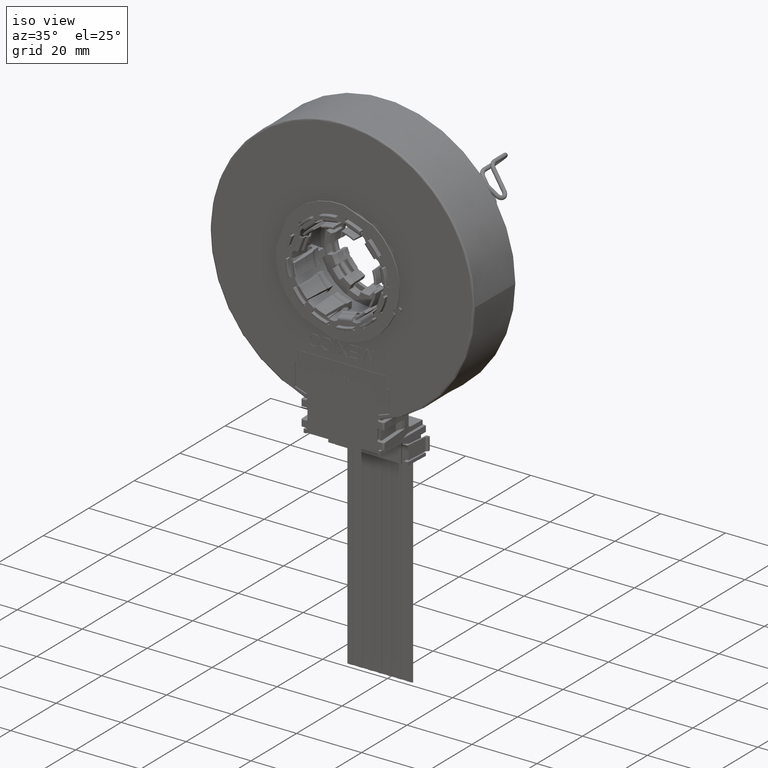
[diagram: clean part render]
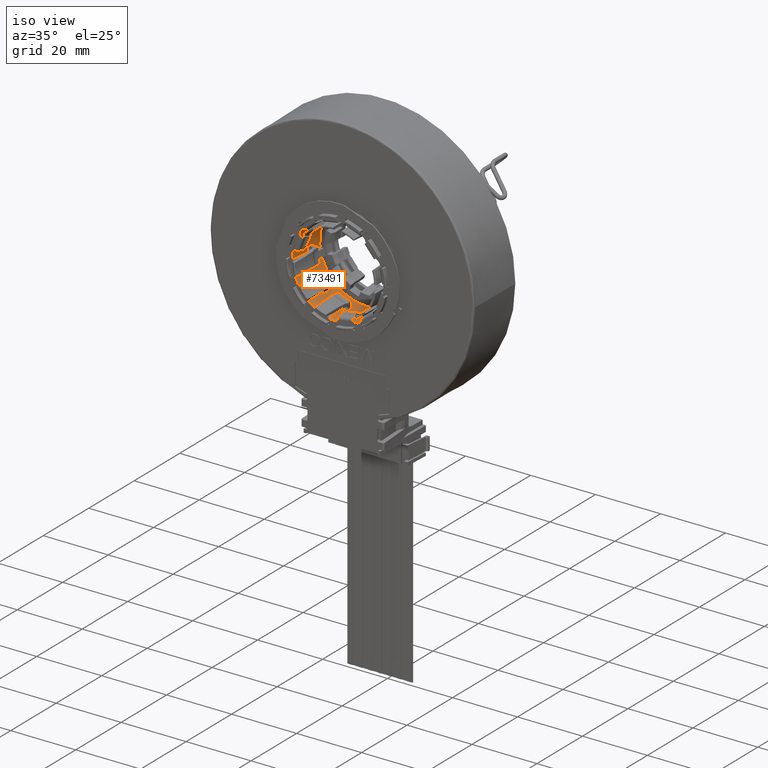
[diagram: same view with one face highlighted and labeled with its STEP entity id]
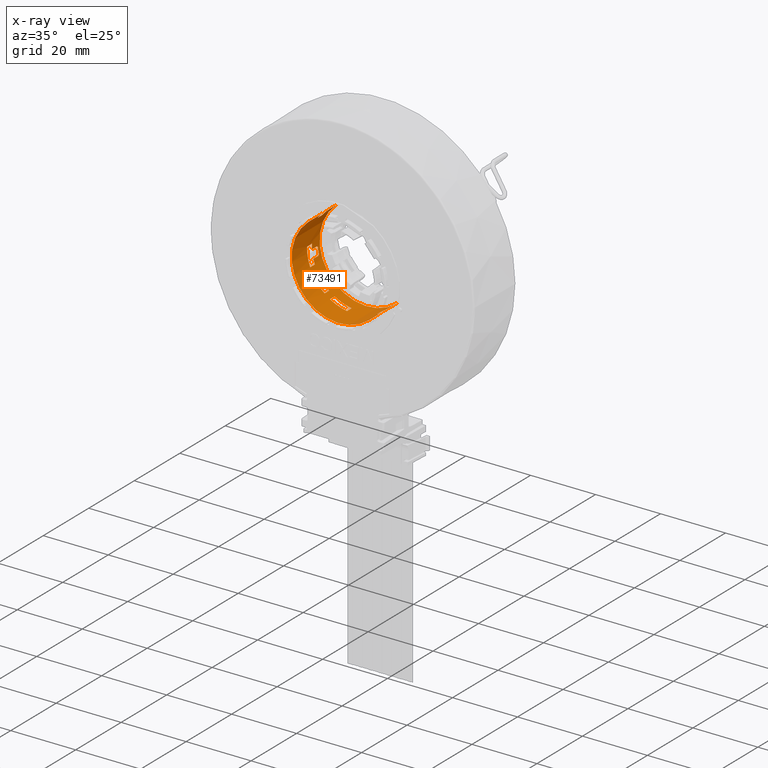
[diagram: x-ray of the same camera — body ghosted, the highlighted face saturated]
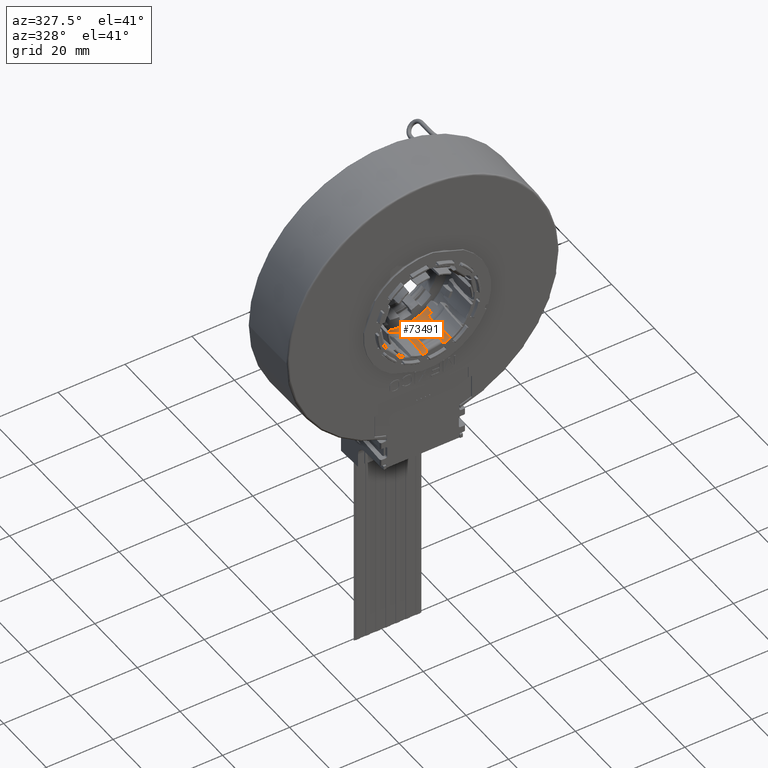
[diagram: same view with one face highlighted and labeled with its STEP entity id]
A machine part, iso view. The second image highlights one B-rep face of the part: STEP entity #73491.
The next image is the same camera in x-ray: the body ghosted, the highlighted face saturated — about 0% of this face is hidden behind the body in this view.
A second angle (auxiliary view) of the same face is appended — the face is thin or edge-on in the first view.
In plain terms, the highlighted cylindrical surface (partial cylindrical patch) has radius 14.5542 mm, axis along (0, -1, 0).
Its self-contained STEP definition (entity closure, byte-faithful):
#58104=CARTESIAN_POINT('',(0.E0,3.93E-1,0.E0));
#58105=DIRECTION('',(0.E0,-1.E0,0.E0));
#58106=DIRECTION('',(6.018186329887E-1,0.E0,-7.986327898274E-1));
#58107=AXIS2_PLACEMENT_3D('',#58104,#58105,#58106);
#58145=CARTESIAN_POINT('',(3.286592980291E-1,3.73E-1,-4.693741213776E-1));
#58146=CARTESIAN_POINT('',(3.286592980291E-1,3.737475671894E-1,
-4.693741213776E-1));
#58147=CARTESIAN_POINT('',(3.287278741460E-1,3.752428362838E-1,
-4.693261156014E-1));
#58148=CARTESIAN_POINT('',(3.290372287557E-1,3.774635479051E-1,
-4.691093493009E-1));
#58149=CARTESIAN_POINT('',(3.295449451814E-1,3.796170363161E-1,
-4.687529314399E-1));
#58150=CARTESIAN_POINT('',(3.302508888358E-1,3.817008254184E-1,
-4.682559820079E-1));
#58151=CARTESIAN_POINT('',(3.311364677527E-1,3.836619048286E-1,
-4.676303175865E-1));
#58152=CARTESIAN_POINT('',(3.321993946177E-1,3.854990018664E-1,
-4.668760195500E-1));
#58153=CARTESIAN_POINT('',(3.334181527261E-1,3.871731799112E-1,
-4.660066236810E-1));
#58154=CARTESIAN_POINT('',(3.347787301074E-1,3.886698311209E-1,
-4.650303593882E-1));
#58155=CARTESIAN_POINT('',(3.362680176099E-1,3.899724819446E-1,
-4.639547650886E-1));
#58156=CARTESIAN_POINT('',(3.378539146503E-1,3.910561258682E-1,
-4.628013633606E-1));
#58157=CARTESIAN_POINT('',(3.395346447897E-1,3.919188658127E-1,
-4.615698509931E-1));
#58158=CARTESIAN_POINT('',(3.412669036440E-1,3.925387797399E-1,
-4.602906681175E-1));
#58159=CARTESIAN_POINT('',(3.430484219881E-1,3.929163128499E-1,
-4.589645430434E-1));
#58160=CARTESIAN_POINT('',(3.442447641884E-1,3.93E-1,-4.580667000683E-1));
#58161=CARTESIAN_POINT('',(3.448420767025E-1,3.93E-1,-4.576165885711E-1));
#58547=DIRECTION('',(0.E0,1.E0,0.E0));
#58548=VECTOR('',#58547,8.04E-2);
#58549=CARTESIAN_POINT('',(2.778218119101E-1,2.126E-1,-5.011427349837E-1));
#58550=LINE('',#58549,#58548);
#58551=CARTESIAN_POINT('',(0.E0,2.126E-1,0.E0));
#58552=DIRECTION('',(0.E0,1.E0,0.E0));
#58553=DIRECTION('',(6.427876096865E-1,0.E0,-7.660444431190E-1));
#58554=AXIS2_PLACEMENT_3D('',#58551,#58552,#58553);
#58556=DIRECTION('',(4.924643984417E-12,-1.E0,4.132635107732E-12));
#58557=VECTOR('',#58556,2.676E-1);
#58558=CARTESIAN_POINT('',(3.683173003504E-1,2.126E-1,-4.389434659072E-1));
#58559=LINE('',#58558,#58557);
#58560=DIRECTION('',(-4.925888629064E-12,-1.E0,-4.133049989281E-12));
#58561=VECTOR('',#58560,2.676E-1);
#58562=CARTESIAN_POINT('',(-3.683173003504E-1,2.126E-1,4.389434659072E-1));
#58563=LINE('',#58562,#58561);
#58564=CARTESIAN_POINT('',(0.E0,2.126E-1,0.E0));
#58565=DIRECTION('',(0.E0,1.E0,0.E0));
#58566=DIRECTION('',(-7.771134370391E-1,0.E0,6.293605532390E-1));
#58567=AXIS2_PLACEMENT_3D('',#58564,#58565,#58566);
#58569=DIRECTION('',(0.E0,-1.E0,0.E0));
#58570=VECTOR('',#58569,8.04E-2);
#58571=CARTESIAN_POINT('',(-4.452859994234E-1,2.93E-1,3.606235970060E-1));
#58572=LINE('',#58571,#58570);
#58573=DIRECTION('',(-3.768275229567E-14,-1.E0,-3.160488902218E-14));
#58574=VECTOR('',#58573,1.37E-1);
#58575=CARTESIAN_POINT('',(-3.683173003504E-1,4.3E-1,4.389434659072E-1));
#58576=LINE('',#58575,#58574);
#58577=DIRECTION('',(1.410283301551E-13,-1.E0,1.170235080010E-13));
#58578=VECTOR('',#58577,3.7E-2);
#58579=CARTESIAN_POINT('',(3.683173003504E-1,4.3E-1,-4.389434659072E-1));
#58580=LINE('',#58579,#58578);
#58581=DIRECTION('',(0.E0,1.E0,0.E0));
#58582=VECTOR('',#58581,8.04E-2);
#58583=CARTESIAN_POINT('',(-2.950914334628E-1,2.126E-1,-4.911721143315E-1));
#58584=LINE('',#58583,#58582);
#58585=CARTESIAN_POINT('',(0.E0,2.126E-1,0.E0));
#58586=DIRECTION('',(0.E0,1.E0,0.E0));
#58587=DIRECTION('',(-1.564855087253E-1,0.E0,-9.876802547176E-1));
#58588=AXIS2_PLACEMENT_3D('',#58585,#58586,#58587);
#58590=DIRECTION('',(0.E0,-1.E0,0.E0));
#58591=VECTOR('',#58590,8.04E-2);
#58592=CARTESIAN_POINT('',(-8.966619649959E-2,2.93E-1,-5.659407859532E-1));
#58593=LINE('',#58592,#58591);
#58594=DIRECTION('',(0.E0,1.E0,0.E0));
#58595=VECTOR('',#58594,8.04E-2);
#58596=CARTESIAN_POINT('',(-5.011427349837E-1,2.126E-1,-2.778218119101E-1));
#58597=LINE('',#58596,#58595);
#58598=CARTESIAN_POINT('',(0.E0,2.126E-1,0.E0));
#58599=DIRECTION('',(0.E0,1.E0,0.E0));
#58600=DIRECTION('',(-6.293605532390E-1,0.E0,-7.771134370391E-1));
#58601=AXIS2_PLACEMENT_3D('',#58598,#58599,#58600);
#58603=DIRECTION('',(0.E0,-1.E0,0.E0));
#58604=VECTOR('',#58603,8.04E-2);
#58605=CARTESIAN_POINT('',(-3.606235970060E-1,2.93E-1,-4.452859994234E-1));
#58606=LINE('',#58605,#58604);
#58607=DIRECTION('',(0.E0,1.E0,0.E0));
#58608=VECTOR('',#58607,8.04E-2);
#58609=CARTESIAN_POINT('',(-5.729132453730E-1,2.126E-1,9.970620652248E-3));
#58610=LINE('',#58609,#58608);
#58611=CARTESIAN_POINT('',(0.E0,2.126E-1,0.E0));
#58612=DIRECTION('',(0.E0,1.E0,0.E0));
#58613=DIRECTION('',(-9.335989457644E-1,0.E0,-3.583197014786E-1));
#58614=AXIS2_PLACEMENT_3D('',#58611,#58612,#58613);
#58616=DIRECTION('',(0.E0,-1.E0,0.E0));
#58617=VECTOR('',#58616,8.04E-2);
#58618=CARTESIAN_POINT('',(-5.349521959230E-1,2.93E-1,-2.053171889472E-1));
#58619=LINE('',#58618,#58617);
#58629=DIRECTION('',(0.E0,-1.E0,0.E0));
#58630=VECTOR('',#58629,8.E-2);
#58631=CARTESIAN_POINT('',(3.286592980291E-1,3.73E-1,-4.693741213776E-1));
#58632=LINE('',#58631,#58630);
#58669=CARTESIAN_POINT('',(0.E0,2.93E-1,0.E0));
#58670=DIRECTION('',(0.E0,1.E0,0.E0));
#58671=DIRECTION('',(5.735764363510E-1,0.E0,-8.191520442890E-1));
#58672=AXIS2_PLACEMENT_3D('',#58669,#58670,#58671);
#58684=CARTESIAN_POINT('',(0.E0,-5.5E-2,0.E0));
#58685=DIRECTION('',(0.E0,1.E0,0.E0));
#58686=DIRECTION('',(6.427876096865E-1,0.E0,-7.660444431190E-1));
#58687=AXIS2_PLACEMENT_3D('',#58684,#58685,#58686);
#63110=CARTESIAN_POINT('',(0.E0,4.3E-1,0.E0));
#63111=DIRECTION('',(0.E0,1.E0,0.E0));
#63112=DIRECTION('',(6.427876096865E-1,0.E0,-7.660444431190E-1));
#63113=AXIS2_PLACEMENT_3D('',#63110,#63111,#63112);
#65283=CARTESIAN_POINT('',(0.E0,2.93E-1,0.E0));
#65284=DIRECTION('',(0.E0,1.E0,0.E0));
#65285=DIRECTION('',(-7.771134370391E-1,0.E0,6.293605532390E-1));
#65286=AXIS2_PLACEMENT_3D('',#65283,#65284,#65285);
#65983=CARTESIAN_POINT('',(0.E0,3.93E-1,0.E0));
#65984=DIRECTION('',(0.E0,-1.E0,0.E0));
#65985=DIRECTION('',(-9.925456007802E-1,0.E0,-1.218738297253E-1));
#65986=AXIS2_PLACEMENT_3D('',#65983,#65984,#65985);
#66019=CARTESIAN_POINT('',(-5.708195620066E-1,3.73E-1,-4.994024059441E-2));
#66020=CARTESIAN_POINT('',(-5.708195620066E-1,3.737475671894E-1,
-4.994024059441E-2));
#66021=CARTESIAN_POINT('',(-5.708122758433E-1,3.752428362838E-1,
-5.002363214178E-2));
#66022=CARTESIAN_POINT('',(-5.707792280252E-1,3.774635479051E-1,
-5.039992424280E-2));
#66023=CARTESIAN_POINT('',(-5.707244193161E-1,3.796170363161E-1,
-5.101782849589E-2));
#66024=CARTESIAN_POINT('',(-5.706470203107E-1,3.817008254184E-1,
-5.187766835023E-2));
#66025=CARTESIAN_POINT('',(-5.705479684860E-1,3.836619048286E-1,
-5.295743440005E-2));
#66026=CARTESIAN_POINT('',(-5.704261906569E-1,3.854990018664E-1,
-5.425510508576E-2));
#66027=CARTESIAN_POINT('',(-5.702826508026E-1,3.871731799112E-1,
-5.574527850321E-2));
#66028=CARTESIAN_POINT('',(-5.701174698149E-1,3.886698311209E-1,
-5.741170522562E-2));
#66029=CARTESIAN_POINT('',(-5.699306215785E-1,3.899724819446E-1,
-5.923926318612E-2));
#66030=CARTESIAN_POINT('',(-5.697246949015E-1,3.910561258682E-1,
-6.118939117486E-2));
#66031=CARTESIAN_POINT('',(-5.694985389759E-1,3.919188658127E-1,
-6.326070235623E-2));
#66032=CARTESIAN_POINT('',(-5.692568635367E-1,3.925387797399E-1,
-6.540047396784E-2));
#66033=CARTESIAN_POINT('',(-5.689991647059E-1,3.929163128499E-1,
-6.760637664821E-2));
#66034=CARTESIAN_POINT('',(-5.688197809811E-1,3.93E-1,-6.909136087284E-2));
#66035=CARTESIAN_POINT('',(-5.687286292470E-1,3.93E-1,-6.983370443262E-2));
#66046=DIRECTION('',(0.E0,-1.E0,0.E0));
#66047=VECTOR('',#66046,8.E-2);
#66048=CARTESIAN_POINT('',(-5.708195620066E-1,3.73E-1,-4.994024059441E-2));
#66049=LINE('',#66048,#66047);
#66086=CARTESIAN_POINT('',(0.E0,2.93E-1,0.E0));
#66087=DIRECTION('',(0.E0,1.E0,0.E0));
#66088=DIRECTION('',(-9.961946980917E-1,0.E0,-8.715574274766E-2));
#66089=AXIS2_PLACEMENT_3D('',#66086,#66087,#66088);
#66095=CARTESIAN_POINT('',(-5.583146297321E-1,3.93E-1,-1.288944305510E-1));
#66096=CARTESIAN_POINT('',(-5.581463878933E-1,3.93E-1,-1.296231810454E-1));
#66097=CARTESIAN_POINT('',(-5.578070589385E-1,3.929163128499E-1,
-1.310799626105E-1));
#66098=CARTESIAN_POINT('',(-5.572947534772E-1,3.925387797399E-1,
-1.332409712725E-1));
#66099=CARTESIAN_POINT('',(-5.567900091107E-1,3.919188658127E-1,
-1.353343567344E-1));
#66100=CARTESIAN_POINT('',(-5.562940960181E-1,3.910561258682E-1,
-1.373581024490E-1));
#66101=CARTESIAN_POINT('',(-5.558206207427E-1,3.899724819446E-1,
-1.392610544012E-1));
#66102=CARTESIAN_POINT('',(-5.553711390160E-1,3.886698311209E-1,
-1.410423029913E-1));
#66103=CARTESIAN_POINT('',(-5.549564068648E-1,3.871731799112E-1,
-1.426647271105E-1));
#66104=CARTESIAN_POINT('',(-5.545816208809E-1,3.854990018664E-1,
-1.441141255961E-1));
#66105=CARTESIAN_POINT('',(-5.542522250944E-1,3.836619048286E-1,
-1.453751876343E-1));
#66106=CARTESIAN_POINT('',(-5.539760016240E-1,3.817008254184E-1,
-1.464237135428E-1));
#66107=CARTESIAN_POINT('',(-5.537546503480E-1,3.796170363161E-1,
-1.472581707278E-1));
#66108=CARTESIAN_POINT('',(-5.535948179863E-1,3.774635479051E-1,
-1.478575564774E-1));
#66109=CARTESIAN_POINT('',(-5.534971732987E-1,3.752428362838E-1,
-1.482224584074E-1));
#66110=CARTESIAN_POINT('',(-5.534754984636E-1,3.737475671894E-1,
-1.483033128437E-1));
#66111=CARTESIAN_POINT('',(-5.534754984636E-1,3.73E-1,-1.483033128437E-1));
#66135=DIRECTION('',(0.E0,-1.E0,0.E0));
#66136=VECTOR('',#66135,8.E-2);
#66137=CARTESIAN_POINT('',(-5.534754984636E-1,3.73E-1,-1.483033128437E-1));
#66138=LINE('',#66137,#66136);
#66152=CARTESIAN_POINT('',(0.E0,2.93E-1,0.E0));
#66153=DIRECTION('',(0.E0,1.E0,0.E0));
#66154=DIRECTION('',(-9.335989457644E-1,0.E0,-3.583197014786E-1));
#66155=AXIS2_PLACEMENT_3D('',#66152,#66153,#66154);
#66810=CARTESIAN_POINT('',(0.E0,2.93E-1,0.E0));
#66811=DIRECTION('',(0.E0,1.E0,0.E0));
#66812=DIRECTION('',(-6.293605532390E-1,0.E0,-7.771134370391E-1));
#66813=AXIS2_PLACEMENT_3D('',#66810,#66811,#66812);
#67440=CARTESIAN_POINT('',(0.E0,2.93E-1,0.E0));
#67441=DIRECTION('',(0.E0,1.E0,0.E0));
#67442=DIRECTION('',(-1.564855087253E-1,0.E0,-9.876802547176E-1));
#67443=AXIS2_PLACEMENT_3D('',#67440,#67441,#67442);
#70559=CARTESIAN_POINT('',(3.683173003504E-1,2.126E-1,-4.389434659072E-1));
#70560=CARTESIAN_POINT('',(3.683173003517E-1,-5.5E-2,-4.389434659061E-1));
#70561=VERTEX_POINT('',#70559);
#70562=VERTEX_POINT('',#70560);
#70563=CARTESIAN_POINT('',(-3.683173003504E-1,2.126E-1,4.389434659072E-1));
#70564=CARTESIAN_POINT('',(-3.683173003517E-1,-5.5E-2,4.389434659061E-1));
#70565=VERTEX_POINT('',#70563);
#70566=VERTEX_POINT('',#70564);
#70567=CARTESIAN_POINT('',(3.683173003504E-1,4.3E-1,-4.389434659072E-1));
#70568=CARTESIAN_POINT('',(-3.683173003504E-1,4.3E-1,4.389434659072E-1));
#70569=VERTEX_POINT('',#70567);
#70570=VERTEX_POINT('',#70568);
#70575=CARTESIAN_POINT('',(-3.683173003504E-1,2.93E-1,4.389434659072E-1));
#70576=VERTEX_POINT('',#70575);
#70679=CARTESIAN_POINT('',(2.778218119101E-1,2.93E-1,-5.011427349837E-1));
#70681=VERTEX_POINT('',#70679);
#70686=CARTESIAN_POINT('',(2.778218119101E-1,2.126E-1,-5.011427349837E-1));
#70687=VERTEX_POINT('',#70686);
#70690=CARTESIAN_POINT('',(-8.966619649959E-2,2.93E-1,-5.659407859532E-1));
#70692=VERTEX_POINT('',#70690);
#70697=CARTESIAN_POINT('',(-8.966619649959E-2,2.126E-1,-5.659407859532E-1));
#70698=VERTEX_POINT('',#70697);
#70701=CARTESIAN_POINT('',(-2.950914334628E-1,2.93E-1,-4.911721143315E-1));
#70703=VERTEX_POINT('',#70701);
#70705=CARTESIAN_POINT('',(-3.606235970060E-1,2.93E-1,-4.452859994234E-1));
#70707=VERTEX_POINT('',#70705);
#70715=CARTESIAN_POINT('',(-2.950914334628E-1,2.126E-1,-4.911721143315E-1));
#70716=VERTEX_POINT('',#70715);
#70717=CARTESIAN_POINT('',(-3.606235970060E-1,2.126E-1,-4.452859994234E-1));
#70718=VERTEX_POINT('',#70717);
#70723=CARTESIAN_POINT('',(-5.011427349837E-1,2.93E-1,-2.778218119101E-1));
#70725=VERTEX_POINT('',#70723);
#70727=CARTESIAN_POINT('',(-5.349521959230E-1,2.93E-1,-2.053171889472E-1));
#70729=VERTEX_POINT('',#70727);
#70737=CARTESIAN_POINT('',(-5.011427349837E-1,2.126E-1,-2.778218119101E-1));
#70738=VERTEX_POINT('',#70737);
#70739=CARTESIAN_POINT('',(-5.349521959230E-1,2.126E-1,-2.053171889472E-1));
#70740=VERTEX_POINT('',#70739);
#70745=CARTESIAN_POINT('',(-5.729132453730E-1,2.93E-1,9.970620652248E-3));
#70747=VERTEX_POINT('',#70745);
#70752=CARTESIAN_POINT('',(-5.729132453730E-1,2.126E-1,9.970620652248E-3));
#70753=VERTEX_POINT('',#70752);
#70756=CARTESIAN_POINT('',(-4.452859994234E-1,2.93E-1,3.606235970060E-1));
#70758=VERTEX_POINT('',#70756);
#70763=CARTESIAN_POINT('',(-4.452859994234E-1,2.126E-1,3.606235970060E-1));
#70764=VERTEX_POINT('',#70763);
#71076=CARTESIAN_POINT('',(3.683173003504E-1,3.93E-1,-4.389434659072E-1));
#71077=VERTEX_POINT('',#71076);
#71082=CARTESIAN_POINT('',(3.286592980291E-1,2.93E-1,-4.693741213776E-1));
#71084=VERTEX_POINT('',#71082);
#71087=CARTESIAN_POINT('',(3.448420767025E-1,3.93E-1,-4.576165885711E-1));
#71089=VERTEX_POINT('',#71087);
#71091=CARTESIAN_POINT('',(3.286592980291E-1,3.73E-1,-4.693741213776E-1));
#71093=VERTEX_POINT('',#71091);
#71102=CARTESIAN_POINT('',(-5.708195620066E-1,2.93E-1,-4.994024059441E-2));
#71104=VERTEX_POINT('',#71102);
#71107=CARTESIAN_POINT('',(-5.687286292470E-1,3.93E-1,-6.983370443262E-2));
#71109=VERTEX_POINT('',#71107);
#71111=CARTESIAN_POINT('',(-5.708195620066E-1,3.73E-1,-4.994024059441E-2));
#71113=VERTEX_POINT('',#71111);
#71114=CARTESIAN_POINT('',(-5.583146297321E-1,3.93E-1,-1.288944305510E-1));
#71116=VERTEX_POINT('',#71114);
#71118=CARTESIAN_POINT('',(-5.534754984636E-1,3.73E-1,-1.483033128437E-1));
#71120=VERTEX_POINT('',#71118);
#71122=CARTESIAN_POINT('',(-5.534754984636E-1,2.93E-1,-1.483033128437E-1));
#71123=VERTEX_POINT('',#71122);
#73420=CARTESIAN_POINT('',(0.E0,4.7935E-1,0.E0));
#73421=DIRECTION('',(0.E0,-1.E0,0.E0));
#73422=DIRECTION('',(-6.427876096865E-1,0.E0,7.660444431190E-1));
#73423=AXIS2_PLACEMENT_3D('',#73420,#73421,#73422);
#73424=CYLINDRICAL_SURFACE('',#73423,5.73E-1);
#73425=ORIENTED_EDGE('',*,*,#73126,.F.);
#73426=ORIENTED_EDGE('',*,*,#73145,.F.);
#73428=ORIENTED_EDGE('',*,*,#73427,.T.);
#73430=ORIENTED_EDGE('',*,*,#73429,.T.);
#73431=ORIENTED_EDGE('',*,*,#73265,.F.);
#73432=ORIENTED_EDGE('',*,*,#73415,.F.);
#73433=ORIENTED_EDGE('',*,*,#73027,.T.);
#73435=ORIENTED_EDGE('',*,*,#73434,.T.);
#73436=ORIENTED_EDGE('',*,*,#73023,.F.);
#73438=ORIENTED_EDGE('',*,*,#73437,.F.);
#73440=ORIENTED_EDGE('',*,*,#73439,.F.);
#73442=ORIENTED_EDGE('',*,*,#73441,.T.);
#73443=ORIENTED_EDGE('',*,*,#73015,.F.);
#73445=ORIENTED_EDGE('',*,*,#73444,.F.);
#73446=ORIENTED_EDGE('',*,*,#73011,.T.);
#73447=EDGE_LOOP('',(#73425,#73426,#73428,#73430,#73431,#73432,#73433,#73435,
#73436,#73438,#73440,#73442,#73443,#73445,#73446));
#73448=FACE_OUTER_BOUND('',#73447,.F.);
#73450=ORIENTED_EDGE('',*,*,#73449,.T.);
#73452=ORIENTED_EDGE('',*,*,#73451,.F.);
#73454=ORIENTED_EDGE('',*,*,#73453,.F.);
#73456=ORIENTED_EDGE('',*,*,#73455,.F.);
#73457=EDGE_LOOP('',(#73450,#73452,#73454,#73456));
#73458=FACE_BOUND('',#73457,.F.);
#73460=ORIENTED_EDGE('',*,*,#73459,.T.);
#73462=ORIENTED_EDGE('',*,*,#73461,.F.);
#73464=ORIENTED_EDGE('',*,*,#73463,.F.);
#73466=ORIENTED_EDGE('',*,*,#73465,.F.);
#73467=EDGE_LOOP('',(#73460,#73462,#73464,#73466));
#73468=FACE_BOUND('',#73467,.F.);
#73470=ORIENTED_EDGE('',*,*,#73469,.F.);
#73472=ORIENTED_EDGE('',*,*,#73471,.F.);
#73474=ORIENTED_EDGE('',*,*,#73473,.F.);
#73476=ORIENTED_EDGE('',*,*,#73475,.F.);
#73478=ORIENTED_EDGE('',*,*,#73477,.T.);
#73480=ORIENTED_EDGE('',*,*,#73479,.T.);
#73482=ORIENTED_EDGE('',*,*,#73481,.F.);
#73484=ORIENTED_EDGE('',*,*,#73483,.F.);
#73486=ORIENTED_EDGE('',*,*,#73485,.F.);
#73488=ORIENTED_EDGE('',*,*,#73487,.T.);
#73489=EDGE_LOOP('',(#73470,#73472,#73474,#73476,#73478,#73480,#73482,#73484,
#73486,#73488));
#73490=FACE_BOUND('',#73489,.F.);
#73491=ADVANCED_FACE('',(#73448,#73458,#73468,#73490),#73424,.F.);
#58108=CIRCLE('',#58107,5.73E-1);
#58162=B_SPLINE_CURVE_WITH_KNOTS('',3,(#58145,#58146,#58147,#58148,#58149,
#58150,#58151,#58152,#58153,#58154,#58155,#58156,#58157,#58158,#58159,#58160,
#58161),.UNSPECIFIED.,.F.,.F.,(4,1,1,1,1,1,1,1,1,1,1,1,1,1,4),(0.E0,
7.142857142857E-2,1.428571428571E-1,2.142857142857E-1,2.857142857143E-1,
3.571428571429E-1,4.285714285714E-1,5.E-1,5.714285714286E-1,6.428571428571E-1,
7.142857142857E-1,7.857142857143E-1,8.571428571429E-1,9.285714285714E-1,1.E0),
.UNSPECIFIED.);
#58555=CIRCLE('',#58554,5.73E-1);
#58568=CIRCLE('',#58567,5.73E-1);
#58589=CIRCLE('',#58588,5.73E-1);
#58602=CIRCLE('',#58601,5.73E-1);
#58615=CIRCLE('',#58614,5.73E-1);
#58673=CIRCLE('',#58672,5.73E-1);
#58688=CIRCLE('',#58687,5.73E-1);
#63114=CIRCLE('',#63113,5.73E-1);
#65287=CIRCLE('',#65286,5.73E-1);
#65987=CIRCLE('',#65986,5.73E-1);
#66036=B_SPLINE_CURVE_WITH_KNOTS('',3,(#66019,#66020,#66021,#66022,#66023,
#66024,#66025,#66026,#66027,#66028,#66029,#66030,#66031,#66032,#66033,#66034,
#66035),.UNSPECIFIED.,.F.,.F.,(4,1,1,1,1,1,1,1,1,1,1,1,1,1,4),(0.E0,
7.142857142857E-2,1.428571428571E-1,2.142857142857E-1,2.857142857143E-1,
3.571428571429E-1,4.285714285714E-1,5.E-1,5.714285714286E-1,6.428571428571E-1,
7.142857142857E-1,7.857142857143E-1,8.571428571429E-1,9.285714285714E-1,1.E0),
.UNSPECIFIED.);
#66090=CIRCLE('',#66089,5.73E-1);
#66112=B_SPLINE_CURVE_WITH_KNOTS('',3,(#66095,#66096,#66097,#66098,#66099,
#66100,#66101,#66102,#66103,#66104,#66105,#66106,#66107,#66108,#66109,#66110,
#66111),.UNSPECIFIED.,.F.,.F.,(4,1,1,1,1,1,1,1,1,1,1,1,1,1,4),(0.E0,
7.142857142857E-2,1.428571428571E-1,2.142857142857E-1,2.857142857143E-1,
3.571428571429E-1,4.285714285714E-1,5.E-1,5.714285714286E-1,6.428571428571E-1,
7.142857142857E-1,7.857142857143E-1,8.571428571429E-1,9.285714285714E-1,1.E0),
.UNSPECIFIED.);
#66156=CIRCLE('',#66155,5.73E-1);
#66814=CIRCLE('',#66813,5.73E-1);
#67444=CIRCLE('',#67443,5.73E-1);
#73011=EDGE_CURVE('',#70569,#71077,#58580,.T.);
#73015=EDGE_CURVE('',#70570,#70576,#58576,.T.);
#73023=EDGE_CURVE('',#70565,#70566,#58563,.T.);
#73027=EDGE_CURVE('',#70561,#70562,#58559,.T.);
#73126=EDGE_CURVE('',#71089,#71077,#58108,.T.);
#73145=EDGE_CURVE('',#71093,#71089,#58162,.T.);
#73265=EDGE_CURVE('',#70687,#70681,#58550,.T.);
#73415=EDGE_CURVE('',#70561,#70687,#58555,.T.);
#73427=EDGE_CURVE('',#71093,#71084,#58632,.T.);
#73429=EDGE_CURVE('',#71084,#70681,#58673,.T.);
#73434=EDGE_CURVE('',#70562,#70566,#58688,.T.);
#73437=EDGE_CURVE('',#70764,#70565,#58568,.T.);
#73439=EDGE_CURVE('',#70758,#70764,#58572,.T.);
#73441=EDGE_CURVE('',#70758,#70576,#65287,.T.);
#73444=EDGE_CURVE('',#70569,#70570,#63114,.T.);
#73449=EDGE_CURVE('',#70692,#70703,#67444,.T.);
#73451=EDGE_CURVE('',#70716,#70703,#58584,.T.);
#73453=EDGE_CURVE('',#70698,#70716,#58589,.T.);
#73455=EDGE_CURVE('',#70692,#70698,#58593,.T.);
#73459=EDGE_CURVE('',#70707,#70725,#66814,.T.);
#73461=EDGE_CURVE('',#70738,#70725,#58597,.T.);
#73463=EDGE_CURVE('',#70718,#70738,#58602,.T.);
#73465=EDGE_CURVE('',#70707,#70718,#58606,.T.);
#73469=EDGE_CURVE('',#71120,#71123,#66138,.T.);
#73471=EDGE_CURVE('',#71116,#71120,#66112,.T.);
#73473=EDGE_CURVE('',#71109,#71116,#65987,.T.);
#73475=EDGE_CURVE('',#71113,#71109,#66036,.T.);
#73477=EDGE_CURVE('',#71113,#71104,#66049,.T.);
#73479=EDGE_CURVE('',#71104,#70747,#66090,.T.);
#73481=EDGE_CURVE('',#70753,#70747,#58610,.T.);
#73483=EDGE_CURVE('',#70740,#70753,#58615,.T.);
#73485=EDGE_CURVE('',#70729,#70740,#58619,.T.);
#73487=EDGE_CURVE('',#70729,#71123,#66156,.T.);